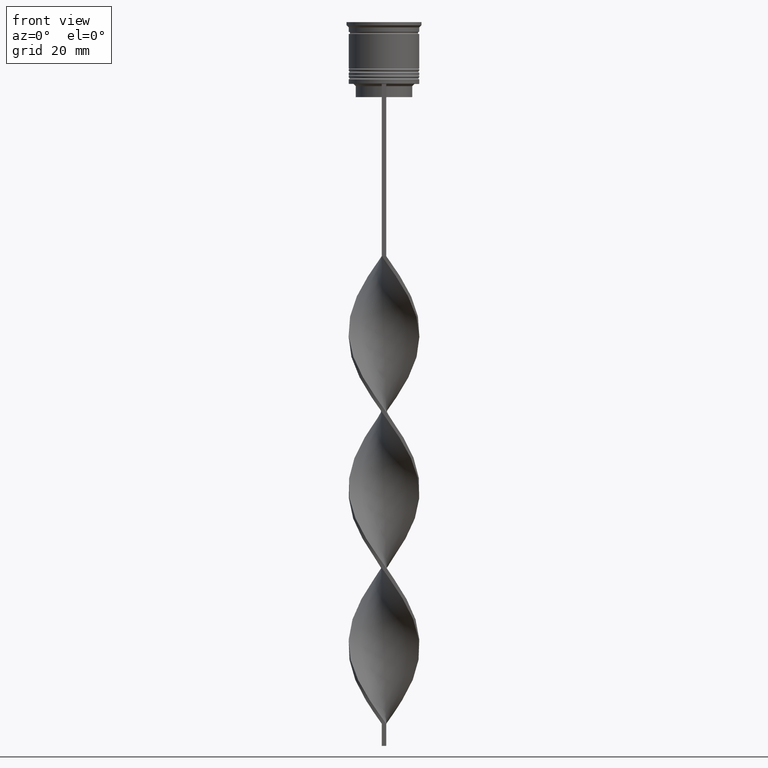
[diagram: clean part render]
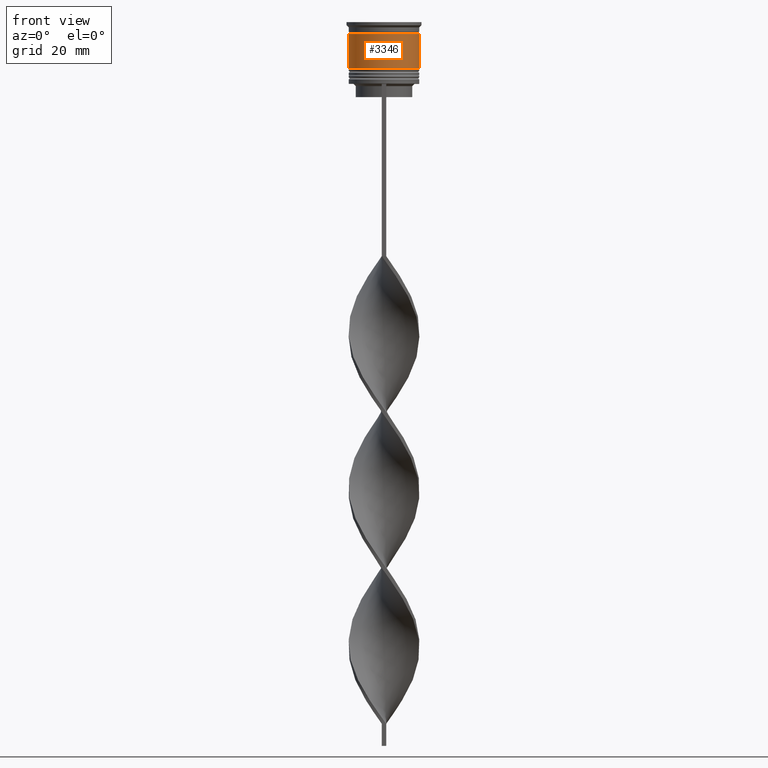
[diagram: same view with one face highlighted and labeled with its STEP entity id]
A machine part, front view. The second image highlights one B-rep face of the part: STEP entity #3346.
In plain terms, the highlighted cylindrical surface (edge-blend (fillet) strip) has radius 8 mm, axis along (-0, -0, 1).
Its self-contained STEP definition (entity closure, byte-faithful):
#34 = AXIS2_PLACEMENT_3D ( 'NONE', #3321, #1896, #447 ) ;
#128 = VERTEX_POINT ( 'NONE', #371 ) ;
#142 = VERTEX_POINT ( 'NONE', #3267 ) ;
#343 = ORIENTED_EDGE ( 'NONE', *, *, #1325, .T. ) ;
#371 = CARTESIAN_POINT ( 'NONE',  ( 8.000000000000001776, 0.000000000000000000, -10.50000000000000000 ) ) ;
#447 = DIRECTION ( 'NONE',  ( 1.000000000000000000, 0.000000000000000000, 0.000000000000000000 ) ) ;
#1019 = CIRCLE ( 'NONE', #34, 8.000000000000001776 ) ;
#1325 = EDGE_CURVE ( 'NONE', #128, #142, #2644, .T. ) ;
#1353 = VERTEX_POINT ( 'NONE', #2898 ) ;
#1434 = FACE_OUTER_BOUND ( 'NONE', #2711, .T. ) ;
#1470 = ORIENTED_EDGE ( 'NONE', *, *, #3319, .F. ) ;
#1485 = CARTESIAN_POINT ( 'NONE',  ( 0.000000000000000000, 0.000000000000000000, -2.700000000000001510 ) ) ;
#1600 = DIRECTION ( 'NONE',  ( -0.000000000000000000, -0.000000000000000000, 1.000000000000000000 ) ) ;
#1736 = CIRCLE ( 'NONE', #2510, 7.999999999999998224 ) ;
#1750 = ORIENTED_EDGE ( 'NONE', *, *, #1830, .F. ) ;
#1762 = DIRECTION ( 'NONE',  ( -0.000000000000000000, -0.000000000000000000, 1.000000000000000000 ) ) ;
#1830 = EDGE_CURVE ( 'NONE', #2776, #1353, #1946, .T. ) ;
#1896 = DIRECTION ( 'NONE',  ( -0.000000000000000000, -0.000000000000000000, 1.000000000000000000 ) ) ;
#1946 = LINE ( 'NONE', #2499, #1974 ) ;
#1974 = VECTOR ( 'NONE', #1600, 1000.000000000000000 ) ;
#2120 = CARTESIAN_POINT ( 'NONE',  ( -8.000000000000001776, 9.797174393178827630E-16, -10.50000000000000000 ) ) ;
#2210 = EDGE_CURVE ( 'NONE', #2776, #128, #1019, .T. ) ;
#2499 = CARTESIAN_POINT ( 'NONE',  ( -8.000000000000000000, 9.797174393178825657E-16, 0.000000000000000000 ) ) ;
#2510 = AXIS2_PLACEMENT_3D ( 'NONE', #1485, #2627, #2549 ) ;
#2549 = DIRECTION ( 'NONE',  ( 1.000000000000000000, 0.000000000000000000, 0.000000000000000000 ) ) ;
#2571 = CYLINDRICAL_SURFACE ( 'NONE', #2695, 8.000000000000000000 ) ;
#2627 = DIRECTION ( 'NONE',  ( -0.000000000000000000, -0.000000000000000000, 1.000000000000000000 ) ) ;
#2644 = LINE ( 'NONE', #3504, #3347 ) ;
#2695 = AXIS2_PLACEMENT_3D ( 'NONE', #3736, #3449, #3158 ) ;
#2711 = EDGE_LOOP ( 'NONE', ( #1750, #3086, #343, #1470 ) ) ;
#2776 = VERTEX_POINT ( 'NONE', #2120 ) ;
#2898 = CARTESIAN_POINT ( 'NONE',  ( -7.999999999999998224, 9.797174393178823685E-16, -2.700000000000001510 ) ) ;
#3086 = ORIENTED_EDGE ( 'NONE', *, *, #2210, .T. ) ;
#3158 = DIRECTION ( 'NONE',  ( 1.000000000000000000, 0.000000000000000000, 0.000000000000000000 ) ) ;
#3267 = CARTESIAN_POINT ( 'NONE',  ( 7.999999999999998224, 0.000000000000000000, -2.700000000000001510 ) ) ;
#3319 = EDGE_CURVE ( 'NONE', #1353, #142, #1736, .T. ) ;
#3321 = CARTESIAN_POINT ( 'NONE',  ( 0.000000000000000000, 0.000000000000000000, -10.50000000000000000 ) ) ;
#3346 = ADVANCED_FACE ( 'NONE', ( #1434 ), #2571, .T. ) ;
#3347 = VECTOR ( 'NONE', #1762, 1000.000000000000000 ) ;
#3449 = DIRECTION ( 'NONE',  ( -0.000000000000000000, -0.000000000000000000, 1.000000000000000000 ) ) ;
#3504 = CARTESIAN_POINT ( 'NONE',  ( 8.000000000000000000, 0.000000000000000000, 0.000000000000000000 ) ) ;
#3736 = CARTESIAN_POINT ( 'NONE',  ( 0.000000000000000000, 0.000000000000000000, 0.000000000000000000 ) ) ;